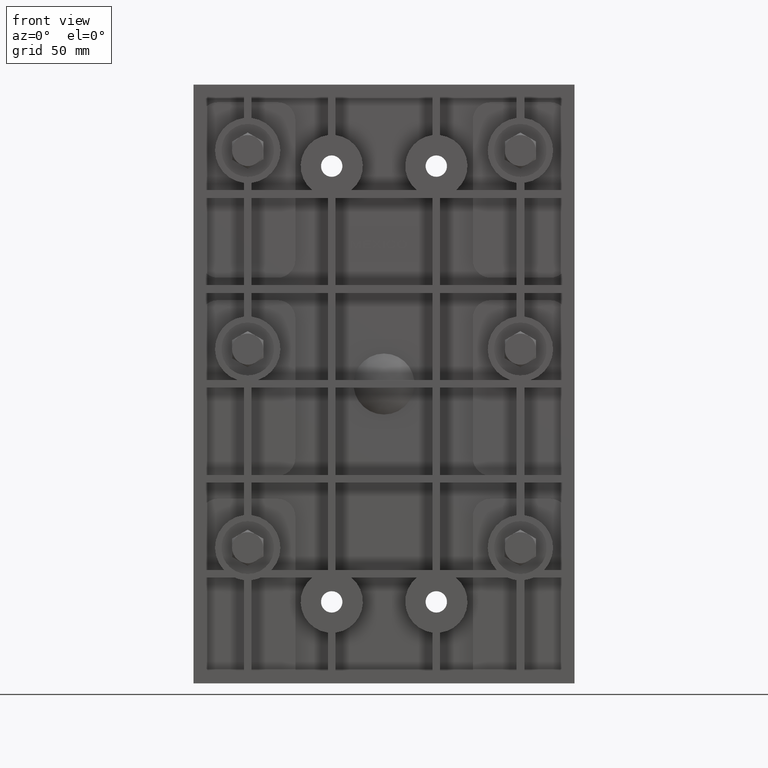
[diagram: clean part render]
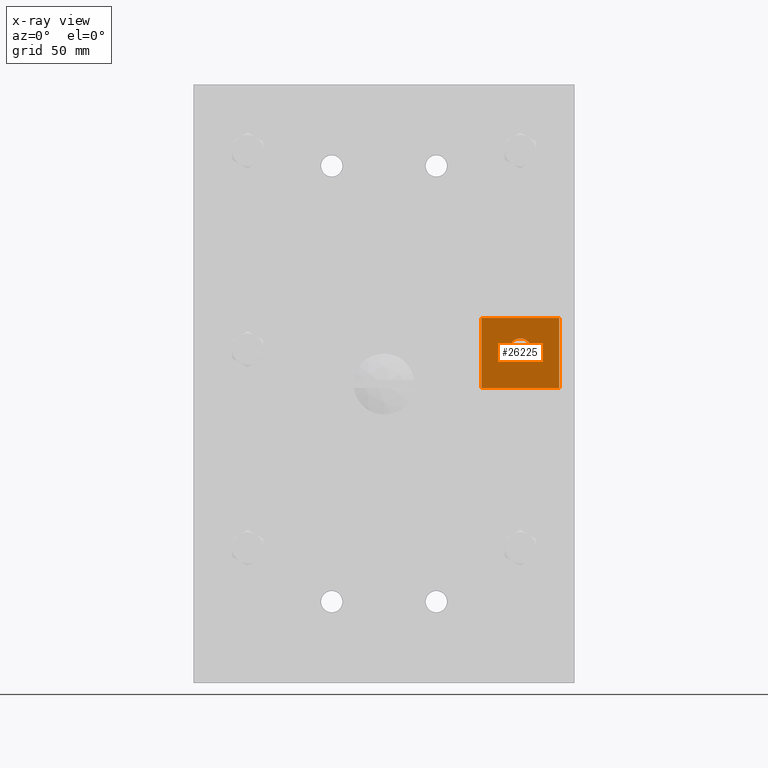
[diagram: x-ray — body ghosted, one internal face saturated and labeled with its STEP entity id]
A machine part, front view, then the same camera in x-ray: the body is ghosted and one INTERNAL B-rep face — a face not visible from any outside direction — is saturated and labeled: STEP entity #26225.
In plain terms, the highlighted planar face has unit normal (0, -1, -0).
Its self-contained STEP definition (entity closure, byte-faithful):
#456 = ORIENTED_EDGE ( 'NONE', *, *, #20398, .F. ) ;
#669 = VECTOR ( 'NONE', #42681, 39.37007874015748100 ) ;
#862 = LINE ( 'NONE', #22787, #33510 ) ;
#878 = DIRECTION ( 'NONE',  ( -1.000000000000000000, 0.0000000000000000000, -3.973597081693475600E-016 ) ) ;
#2350 = VERTEX_POINT ( 'NONE', #52947 ) ;
#2850 = EDGE_LOOP ( 'NONE', ( #33536 ) ) ;
#4304 = VECTOR ( 'NONE', #12954, 39.37007874015748100 ) ;
#5150 = DIRECTION ( 'NONE',  ( 1.000000000000000000, 2.477076573491487400E-019, 4.857225732735057900E-016 ) ) ;
#5476 = EDGE_CURVE ( 'NONE', #46379, #33622, #19401, .T. ) ;
#5580 = FACE_OUTER_BOUND ( 'NONE', #8652, .T. ) ;
#7337 = CARTESIAN_POINT ( 'NONE',  ( 1.565000000000000800, 0.9000000000000002400, -0.06500000000000283300 ) ) ;
#8530 = CARTESIAN_POINT ( 'NONE',  ( 1.565000000000000800, 0.9000000000000002400, -0.06500000000000283300 ) ) ;
#8652 = EDGE_LOOP ( 'NONE', ( #10801, #456, #9314, #31284 ) ) ;
#9314 = ORIENTED_EDGE ( 'NONE', *, *, #22700, .F. ) ;
#10801 = ORIENTED_EDGE ( 'NONE', *, *, #5476, .T. ) ;
#11505 = VERTEX_POINT ( 'NONE', #50062 ) ;
#12954 = DIRECTION ( 'NONE',  ( 4.857225732735057900E-016, 1.387612971029887000E-017, -1.000000000000000000 ) ) ;
#14033 = EDGE_CURVE ( 'NONE', #48993, #48993, #36584, .T. ) ;
#15261 = DIRECTION ( 'NONE',  ( 2.477076573491554800E-019, -1.000000000000000000, -1.387612971029887000E-017 ) ) ;
#19401 = LINE ( 'NONE', #34720, #29839 ) ;
#19549 = PLANE ( 'NONE',  #54980 ) ;
#20239 = CARTESIAN_POINT ( 'NONE',  ( 2.018125000000000800, 0.9000000000000002400, 0.5599999999999972800 ) ) ;
#20398 = EDGE_CURVE ( 'NONE', #11505, #33622, #34738, .T. ) ;
#21656 = LINE ( 'NONE', #8530, #4304 ) ;
#22700 = EDGE_CURVE ( 'NONE', #2350, #11505, #21656, .T. ) ;
#22787 = CARTESIAN_POINT ( 'NONE',  ( 1.565000000000000400, 0.9000000000000002400, 1.059999999999997200 ) ) ;
#26225 = ADVANCED_FACE ( 'NONE', ( #41051, #5580 ), #19549, .F. ) ;
#26854 = AXIS2_PLACEMENT_3D ( 'NONE', #54128, #27426, #878 ) ;
#27426 = DIRECTION ( 'NONE',  ( -2.477076573491554800E-019, 1.000000000000000000, 1.387612971029887000E-017 ) ) ;
#28165 = CARTESIAN_POINT ( 'NONE',  ( 2.815000000000000400, 0.9000000000000002400, 1.059999999999997600 ) ) ;
#29839 = VECTOR ( 'NONE', #39176, 39.37007874015748100 ) ;
#31284 = ORIENTED_EDGE ( 'NONE', *, *, #51198, .T. ) ;
#33510 = VECTOR ( 'NONE', #5150, 39.37007874015748100 ) ;
#33536 = ORIENTED_EDGE ( 'NONE', *, *, #14033, .F. ) ;
#33622 = VERTEX_POINT ( 'NONE', #48253 ) ;
#34720 = CARTESIAN_POINT ( 'NONE',  ( 2.815000000000000800, 0.9000000000000002400, -0.06500000000000222300 ) ) ;
#34738 = LINE ( 'NONE', #7337, #669 ) ;
#36584 = CIRCLE ( 'NONE', #26854, 0.1718749999999999200 ) ;
#39176 = DIRECTION ( 'NONE',  ( 4.857225732735057900E-016, 1.387612971029887000E-017, -1.000000000000000000 ) ) ;
#41051 = FACE_BOUND ( 'NONE', #2850, .T. ) ;
#41957 = CARTESIAN_POINT ( 'NONE',  ( 1.565000000000000800, 0.9000000000000002400, -0.06500000000000283300 ) ) ;
#42681 = DIRECTION ( 'NONE',  ( 1.000000000000000000, 2.477076573491487400E-019, 4.857225732735057900E-016 ) ) ;
#46379 = VERTEX_POINT ( 'NONE', #28165 ) ;
#46430 = DIRECTION ( 'NONE',  ( 1.000000000000000000, 2.477076573491487400E-019, 4.857225732735057900E-016 ) ) ;
#48253 = CARTESIAN_POINT ( 'NONE',  ( 2.815000000000000800, 0.9000000000000002400, -0.06500000000000222300 ) ) ;
#48993 = VERTEX_POINT ( 'NONE', #20239 ) ;
#50062 = CARTESIAN_POINT ( 'NONE',  ( 1.565000000000000800, 0.9000000000000002400, -0.06500000000000283300 ) ) ;
#51198 = EDGE_CURVE ( 'NONE', #2350, #46379, #862, .T. ) ;
#52947 = CARTESIAN_POINT ( 'NONE',  ( 1.565000000000000400, 0.9000000000000002400, 1.059999999999997200 ) ) ;
#54128 = CARTESIAN_POINT ( 'NONE',  ( 2.190000000000000800, 0.9000000000000002400, 0.5599999999999973900 ) ) ;
#54980 = AXIS2_PLACEMENT_3D ( 'NONE', #41957, #15261, #46430 ) ;